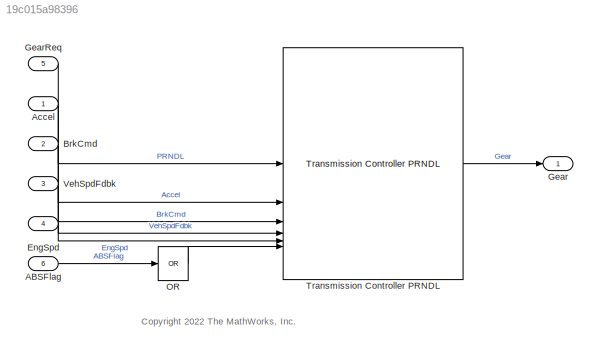
MODEL slx_19c015a98396
KIND model
CONFIG StartFcn = %tic
CONFIG StopFcn = %toc
BLOCK [Inport] ABSFlag
  OutDataTypeStr = boolean
  Port = 6
  PortDimensions = 4
  SamplingMode = Sample based
  SignalType = real
BLOCK [Inport] Accel
  OutDataTypeStr = double
  PortDimensions = 1
  SamplingMode = Sample based
  SignalType = real
BLOCK [Inport] BrkCmd
  OutDataTypeStr = double
  Port = 2
  PortDimensions = 1
  SamplingMode = Sample based
  SignalType = real
BLOCK [Inport] EngSpd
  OutDataTypeStr = double
  Port = 4
  PortDimensions = 1
  SamplingMode = Sample based
  SignalType = real
  Unit = rad/s
BLOCK [Outport] Gear
  OutDataTypeStr = double
  PortDimensions = 1
  SamplingMode = Sample based
  SignalType = real
  VectorParamsAs1DForOutWhenUnconnected = off
BLOCK [Inport] GearReq
  OutDataTypeStr = double
  Port = 5
  PortDimensions = 1
  SamplingMode = Sample based
  SignalType = real
BLOCK [Logic] OR
  AllPortsSameDT = off
  Inputs = 1
  Operator = OR
  OutDataTypeStr = boolean
BLOCK [Reference] Transmission Controller PRNDL  REF=autolibtranscontrolscommon/Transmission Controller PRNDL
  SourceBlock = autolibtranscontrolscommon/Transmission Controller PRNDL
  SourceType = Transmission Controller PRNDL
BLOCK [Inport] VehSpdFdbk
  OutDataTypeStr = double
  Port = 3
  PortDimensions = 1
  SamplingMode = Sample based
  SignalType = real
  Unit = m/s
ANNOTATION (root): <copyright redacted>
LINE ABSFlag:1 -> OR:1
LINE Accel:1 -> Transmission Controller PRNDL:2
LINE BrkCmd:1 -> Transmission Controller PRNDL:3
LINE EngSpd:1 -> Transmission Controller PRNDL:5
LINE GearReq:1 -> Transmission Controller PRNDL:1
LINE OR:1 -> Transmission Controller PRNDL:6
LINE Transmission Controller PRNDL:1 -> Gear:1
LINE VehSpdFdbk:1 -> Transmission Controller PRNDL:4
